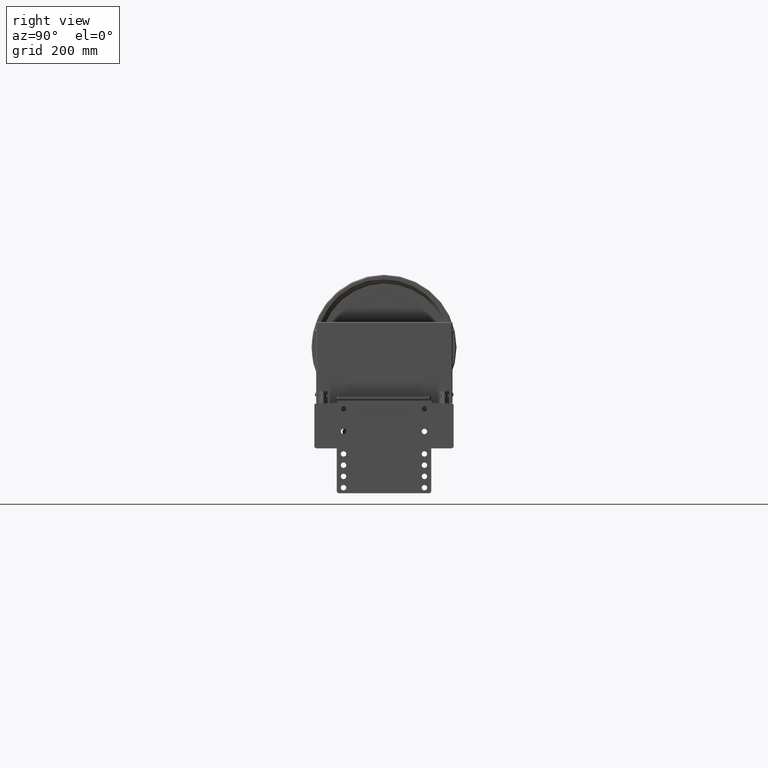
[diagram: clean part render]
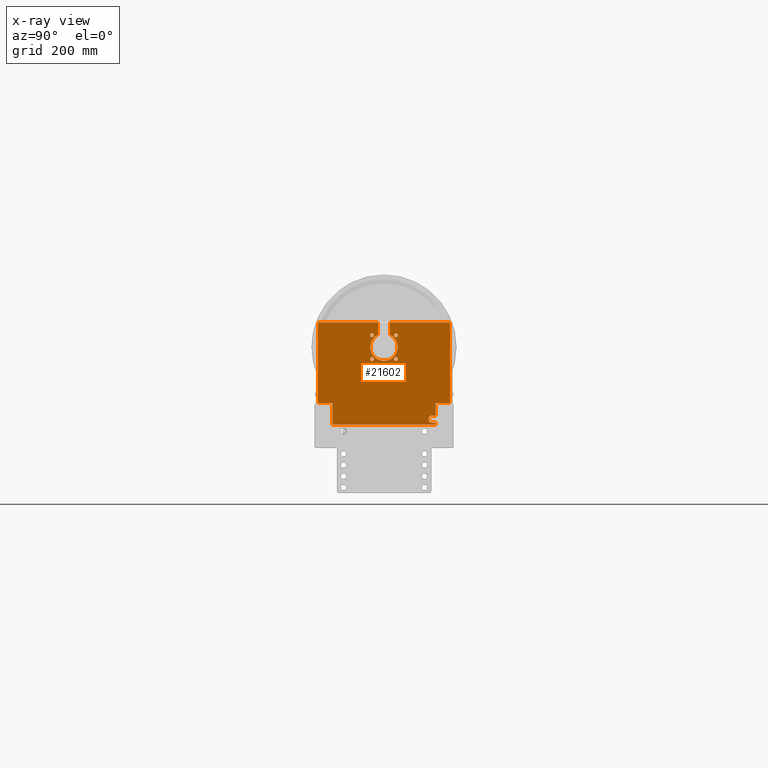
[diagram: x-ray — body ghosted, one internal face saturated and labeled with its STEP entity id]
A machine part, right view, then the same camera in x-ray: the body is ghosted and one INTERNAL B-rep face — a face not visible from any outside direction — is saturated and labeled: STEP entity #21602.
In plain terms, the highlighted planar face has unit normal (1, 0, -0).
Its self-contained STEP definition (entity closure, byte-faithful):
#20270=CARTESIAN_POINT('',(-22.141504294496144,3.483495705504765,1.500000000000000));
#20271=VERTEX_POINT('',#20270);
#20280=CARTESIAN_POINT('',(-30.891504294496144,3.483495705504765,1.500000000000000));
#20281=VERTEX_POINT('',#20280);
#20282=CARTESIAN_POINT('',(-26.516504294496144,3.483495705504765,1.500000000000000));
#20283=DIRECTION('',(0.0,0.0,1.0));
#20284=DIRECTION('',(1.0,0.0,0.0));
#20285=AXIS2_PLACEMENT_3D('',#20282,#20283,#20284);
#20286=CIRCLE('',#20285,4.375000000000000);
#20287=EDGE_CURVE('',#20271,#20281,#20286,.T.);
#20312=CARTESIAN_POINT('',(30.891504294494780,3.483495705504765,1.500000000000000));
#20313=VERTEX_POINT('',#20312);
#20322=CARTESIAN_POINT('',(22.141504294494780,3.483495705504765,1.500000000000000));
#20323=VERTEX_POINT('',#20322);
#20324=CARTESIAN_POINT('',(26.516504294494780,3.483495705504765,1.500000000000000));
#20325=DIRECTION('',(0.0,0.0,1.0));
#20326=DIRECTION('',(1.0,0.0,0.0));
#20327=AXIS2_PLACEMENT_3D('',#20324,#20325,#20326);
#20328=CIRCLE('',#20327,4.375000000000000);
#20329=EDGE_CURVE('',#20313,#20323,#20328,.T.);
#20354=CARTESIAN_POINT('',(30.891504294494780,56.516504294495917,1.500000000000000));
#20355=VERTEX_POINT('',#20354);
#20364=CARTESIAN_POINT('',(22.141504294494780,56.516504294495917,1.500000000000000));
#20365=VERTEX_POINT('',#20364);
#20366=CARTESIAN_POINT('',(26.516504294494780,56.516504294495917,1.500000000000000));
#20367=DIRECTION('',(0.0,0.0,1.0));
#20368=DIRECTION('',(1.0,0.0,0.0));
#20369=AXIS2_PLACEMENT_3D('',#20366,#20367,#20368);
#20370=CIRCLE('',#20369,4.375000000000000);
#20371=EDGE_CURVE('',#20355,#20365,#20370,.T.);
#20396=CARTESIAN_POINT('',(-22.141504294496372,56.516504294495917,1.500000000000000));
#20397=VERTEX_POINT('',#20396);
#20406=CARTESIAN_POINT('',(-30.891504294496372,56.516504294495917,1.500000000000000));
#20407=VERTEX_POINT('',#20406);
#20408=CARTESIAN_POINT('',(-26.516504294496372,56.516504294495917,1.500000000000000));
#20409=DIRECTION('',(0.0,0.0,1.0));
#20410=DIRECTION('',(1.0,0.0,0.0));
#20411=AXIS2_PLACEMENT_3D('',#20408,#20409,#20410);
#20412=CIRCLE('',#20411,4.375000000000000);
#20413=EDGE_CURVE('',#20397,#20407,#20412,.T.);
#20702=CARTESIAN_POINT('',(147.000000000000910,-94.999999999999773,1.500000000000000));
#20703=VERTEX_POINT('',#20702);
#20704=CARTESIAN_POINT('',(147.000000000000910,85.000000000000227,1.500000000000000));
#20705=VERTEX_POINT('',#20704);
#20706=CARTESIAN_POINT('',(147.000000000000910,-94.999999999999773,1.500000000000000));
#20707=DIRECTION('',(0.0,1.0,0.0));
#20708=VECTOR('',#20707,180.0);
#20709=LINE('',#20706,#20708);
#20710=EDGE_CURVE('',#20703,#20705,#20709,.T.);
#20781=CARTESIAN_POINT('',(-147.000000000000910,85.000000000000227,1.500000000000000));
#20782=VERTEX_POINT('',#20781);
#20783=CARTESIAN_POINT('',(-147.000000000001080,-94.999999999999773,1.500000000000000));
#20784=VERTEX_POINT('',#20783);
#20785=CARTESIAN_POINT('',(-147.000000000000910,85.000000000000227,1.500000000000000));
#20786=DIRECTION('',(0.0,-1.0,0.0));
#20787=VECTOR('',#20786,180.0);
#20788=LINE('',#20785,#20787);
#20789=EDGE_CURVE('',#20782,#20784,#20788,.T.);
#20860=CARTESIAN_POINT('',(-115.000000000000910,-141.999999999999770,1.500000000000000));
#20861=VERTEX_POINT('',#20860);
#20862=CARTESIAN_POINT('',(114.999999999999090,-141.999999999999770,1.500000000000000));
#20863=VERTEX_POINT('',#20862);
#20864=CARTESIAN_POINT('',(-115.000000000000910,-141.999999999999770,1.500000000000000));
#20865=DIRECTION('',(1.0,0.0,0.0));
#20866=VECTOR('',#20865,230.0);
#20867=LINE('',#20864,#20866);
#20868=EDGE_CURVE('',#20861,#20863,#20867,.T.);
#20941=CARTESIAN_POINT('',(12.999999999999091,85.000000000000227,1.500000000000000));
#20942=VERTEX_POINT('',#20941);
#20949=CARTESIAN_POINT('',(12.999999999999091,85.000000000000227,1.500000000000000));
#20950=DIRECTION('',(1.0,0.0,0.0));
#20951=VECTOR('',#20950,134.000000000001820);
#20952=LINE('',#20949,#20951);
#20953=EDGE_CURVE('',#20942,#20705,#20952,.T.);
#20971=CARTESIAN_POINT('',(114.999999999999090,-94.999999999999773,1.500000000000000));
#20972=VERTEX_POINT('',#20971);
#20973=CARTESIAN_POINT('',(147.000000000000910,-94.999999999999773,1.500000000000000));
#20974=DIRECTION('',(-1.0,0.0,0.0));
#20975=VECTOR('',#20974,32.000000000001819);
#20976=LINE('',#20973,#20975);
#20977=EDGE_CURVE('',#20703,#20972,#20976,.T.);
#21011=CARTESIAN_POINT('',(-13.000000000000909,85.000000000000227,1.500000000000000));
#21012=VERTEX_POINT('',#21011);
#21013=CARTESIAN_POINT('',(-147.000000000000910,85.000000000000227,1.500000000000000));
#21014=DIRECTION('',(1.0,0.0,0.0));
#21015=VECTOR('',#21014,134.0);
#21016=LINE('',#21013,#21015);
#21017=EDGE_CURVE('',#20782,#21012,#21016,.T.);
#21061=CARTESIAN_POINT('',(114.999999999999090,-137.999999999999770,1.500000000000000));
#21062=VERTEX_POINT('',#21061);
#21069=CARTESIAN_POINT('',(114.999999999999090,-137.999999999999770,1.500000000000000));
#21070=DIRECTION('',(0.0,-1.0,0.0));
#21071=VECTOR('',#21070,4.0);
#21072=LINE('',#21069,#21071);
#21073=EDGE_CURVE('',#21062,#20863,#21072,.T.);
#21233=CARTESIAN_POINT('',(-115.000000000000910,-94.999999999999773,1.500000000000000));
#21234=VERTEX_POINT('',#21233);
#21235=CARTESIAN_POINT('',(-115.000000000000910,-141.999999999999770,1.500000000000000));
#21236=DIRECTION('',(0.0,1.0,0.0));
#21237=VECTOR('',#21236,47.0);
#21238=LINE('',#21235,#21237);
#21239=EDGE_CURVE('',#20861,#21234,#21238,.T.);
#21264=CARTESIAN_POINT('',(-13.000000000000909,57.590759322643180,1.500000000000000));
#21265=VERTEX_POINT('',#21264);
#21266=CARTESIAN_POINT('',(-13.000000000000909,85.000000000000227,1.500000000000000));
#21267=DIRECTION('',(0.0,-1.0,0.0));
#21268=VECTOR('',#21267,27.409240677357047);
#21269=LINE('',#21266,#21268);
#21270=EDGE_CURVE('',#21012,#21265,#21269,.T.);
#21288=CARTESIAN_POINT('',(12.999999999999091,57.590759322643180,1.500000000000000));
#21289=VERTEX_POINT('',#21288);
#21290=CARTESIAN_POINT('',(1.818989E-012,29.999999999996817,1.500000000000000));
#21291=DIRECTION('',(0.0,0.0,1.0));
#21292=DIRECTION('',(1.0,0.0,0.0));
#21293=AXIS2_PLACEMENT_3D('',#21290,#21291,#21292);
#21294=CIRCLE('',#21293,30.500000000000000);
#21295=EDGE_CURVE('',#21265,#21289,#21294,.T.);
#21313=CARTESIAN_POINT('',(12.999999999999091,57.590759322643180,1.500000000000000));
#21314=DIRECTION('',(0.0,1.0,0.0));
#21315=VECTOR('',#21314,27.409240677357047);
#21316=LINE('',#21313,#21315);
#21317=EDGE_CURVE('',#21289,#20942,#21316,.T.);
#21350=CARTESIAN_POINT('',(114.999999999999090,-121.999999999999770,1.500000000000000));
#21351=VERTEX_POINT('',#21350);
#21352=CARTESIAN_POINT('',(114.999999999999090,-94.999999999999773,1.500000000000000));
#21353=DIRECTION('',(0.0,-1.0,0.0));
#21354=VECTOR('',#21353,27.0);
#21355=LINE('',#21352,#21354);
#21356=EDGE_CURVE('',#20972,#21351,#21355,.T.);
#21374=CARTESIAN_POINT('',(106.999999999999090,-121.999999999999770,1.500000000000000));
#21375=VERTEX_POINT('',#21374);
#21376=CARTESIAN_POINT('',(114.999999999999090,-121.999999999999770,1.500000000000000));
#21377=DIRECTION('',(-1.0,0.0,0.0));
#21378=VECTOR('',#21377,8.0);
#21379=LINE('',#21376,#21378);
#21380=EDGE_CURVE('',#21351,#21375,#21379,.T.);
#21398=CARTESIAN_POINT('',(106.999999999999090,-137.999999999999770,1.500000000000000));
#21399=VERTEX_POINT('',#21398);
#21400=CARTESIAN_POINT('',(106.999999999999090,-129.999999999999770,1.500000000000000));
#21401=DIRECTION('',(0.0,0.0,1.0));
#21402=DIRECTION('',(1.0,0.0,0.0));
#21403=AXIS2_PLACEMENT_3D('',#21400,#21401,#21402);
#21404=CIRCLE('',#21403,8.0);
#21405=EDGE_CURVE('',#21375,#21399,#21404,.T.);
#21423=CARTESIAN_POINT('',(106.999999999999090,-137.999999999999770,1.500000000000000));
#21424=DIRECTION('',(1.0,0.0,0.0));
#21425=VECTOR('',#21424,8.0);
#21426=LINE('',#21423,#21425);
#21427=EDGE_CURVE('',#21399,#21062,#21426,.T.);
#21454=CARTESIAN_POINT('',(-115.000000000000910,-94.999999999999773,1.500000000000000));
#21455=DIRECTION('',(-1.0,0.0,0.0));
#21456=VECTOR('',#21455,32.000000000000171);
#21457=LINE('',#21454,#21456);
#21458=EDGE_CURVE('',#21234,#20784,#21457,.T.);
#21499=CARTESIAN_POINT('',(-26.516504294496372,56.516504294495917,1.500000000000000));
#21500=DIRECTION('',(0.0,0.0,1.0));
#21501=DIRECTION('',(1.0,0.0,0.0));
#21502=AXIS2_PLACEMENT_3D('',#21499,#21500,#21501);
#21503=CIRCLE('',#21502,4.375000000000000);
#21504=EDGE_CURVE('',#20407,#20397,#21503,.T.);
#21517=CARTESIAN_POINT('',(26.516504294494780,56.516504294495917,1.500000000000000));
#21518=DIRECTION('',(0.0,0.0,1.0));
#21519=DIRECTION('',(1.0,0.0,0.0));
#21520=AXIS2_PLACEMENT_3D('',#21517,#21518,#21519);
#21521=CIRCLE('',#21520,4.375000000000000);
#21522=EDGE_CURVE('',#20365,#20355,#21521,.T.);
#21535=CARTESIAN_POINT('',(26.516504294494780,3.483495705504765,1.500000000000000));
#21536=DIRECTION('',(0.0,0.0,1.0));
#21537=DIRECTION('',(1.0,0.0,0.0));
#21538=AXIS2_PLACEMENT_3D('',#21535,#21536,#21537);
#21539=CIRCLE('',#21538,4.375000000000000);
#21540=EDGE_CURVE('',#20323,#20313,#21539,.T.);
#21553=CARTESIAN_POINT('',(-26.516504294496144,3.483495705504765,1.500000000000000));
#21554=DIRECTION('',(0.0,0.0,1.0));
#21555=DIRECTION('',(1.0,0.0,0.0));
#21556=AXIS2_PLACEMENT_3D('',#21553,#21554,#21555);
#21557=CIRCLE('',#21556,4.375000000000000);
#21558=EDGE_CURVE('',#20281,#20271,#21557,.T.);
#21563=CARTESIAN_POINT('',(1.962729134458641,-19.719278056207713,1.500000000000000));
#21564=DIRECTION('',(0.0,0.0,1.0));
#21565=DIRECTION('',(1.0,0.0,0.0));
#21566=AXIS2_PLACEMENT_3D('',#21563,#21564,#21565);
#21567=PLANE('',#21566);
#21568=ORIENTED_EDGE('',*,*,#20710,.T.);
#21569=ORIENTED_EDGE('',*,*,#20953,.F.);
#21570=ORIENTED_EDGE('',*,*,#21317,.F.);
#21571=ORIENTED_EDGE('',*,*,#21295,.F.);
#21572=ORIENTED_EDGE('',*,*,#21270,.F.);
#21573=ORIENTED_EDGE('',*,*,#21017,.F.);
#21574=ORIENTED_EDGE('',*,*,#20789,.T.);
#21575=ORIENTED_EDGE('',*,*,#21458,.F.);
#21576=ORIENTED_EDGE('',*,*,#21239,.F.);
#21577=ORIENTED_EDGE('',*,*,#20868,.T.);
#21578=ORIENTED_EDGE('',*,*,#21073,.F.);
#21579=ORIENTED_EDGE('',*,*,#21427,.F.);
#21580=ORIENTED_EDGE('',*,*,#21405,.F.);
#21581=ORIENTED_EDGE('',*,*,#21380,.F.);
#21582=ORIENTED_EDGE('',*,*,#21356,.F.);
#21583=ORIENTED_EDGE('',*,*,#20977,.F.);
#21584=EDGE_LOOP('',(#21568,#21569,#21570,#21571,#21572,#21573,#21574,#21575,#21576,#21577,#21578,#21579,#21580,#21581,#21582,#21583));
#21585=FACE_OUTER_BOUND('',#21584,.T.);
#21586=ORIENTED_EDGE('',*,*,#20287,.F.);
#21587=ORIENTED_EDGE('',*,*,#21558,.F.);
#21588=EDGE_LOOP('',(#21586,#21587));
#21589=FACE_BOUND('',#21588,.T.);
#21590=ORIENTED_EDGE('',*,*,#20329,.F.);
#21591=ORIENTED_EDGE('',*,*,#21540,.F.);
#21592=EDGE_LOOP('',(#21590,#21591));
#21593=FACE_BOUND('',#21592,.T.);
#21594=ORIENTED_EDGE('',*,*,#20371,.F.);
#21595=ORIENTED_EDGE('',*,*,#21522,.F.);
#21596=EDGE_LOOP('',(#21594,#21595));
#21597=FACE_BOUND('',#21596,.T.);
#21598=ORIENTED_EDGE('',*,*,#20413,.F.);
#21599=ORIENTED_EDGE('',*,*,#21504,.F.);
#21600=EDGE_LOOP('',(#21598,#21599));
#21601=FACE_BOUND('',#21600,.T.);
#21602=ADVANCED_FACE('',(#21585,#21589,#21593,#21597,#21601),#21567,.T.);